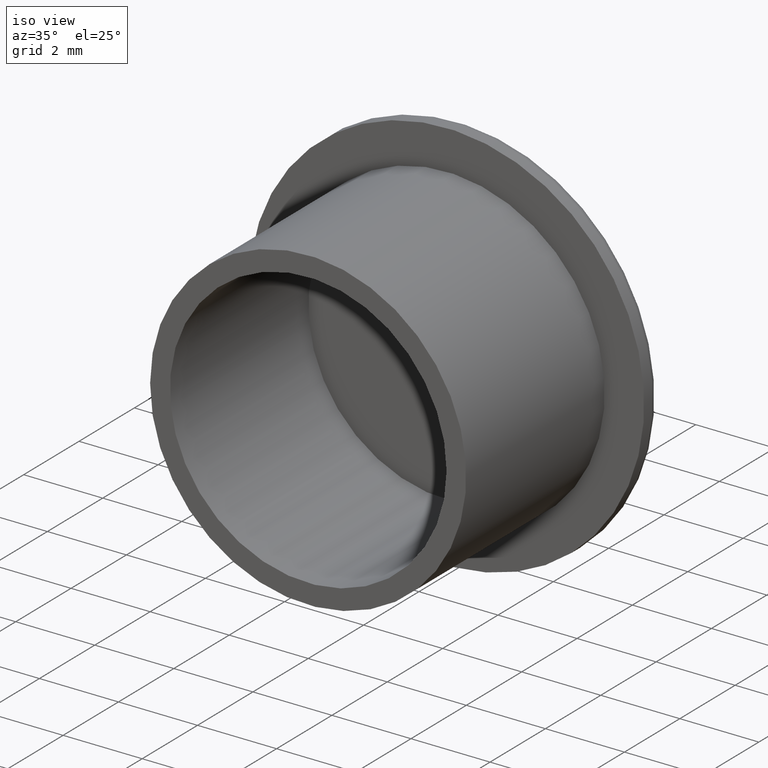
[diagram: clean part render]
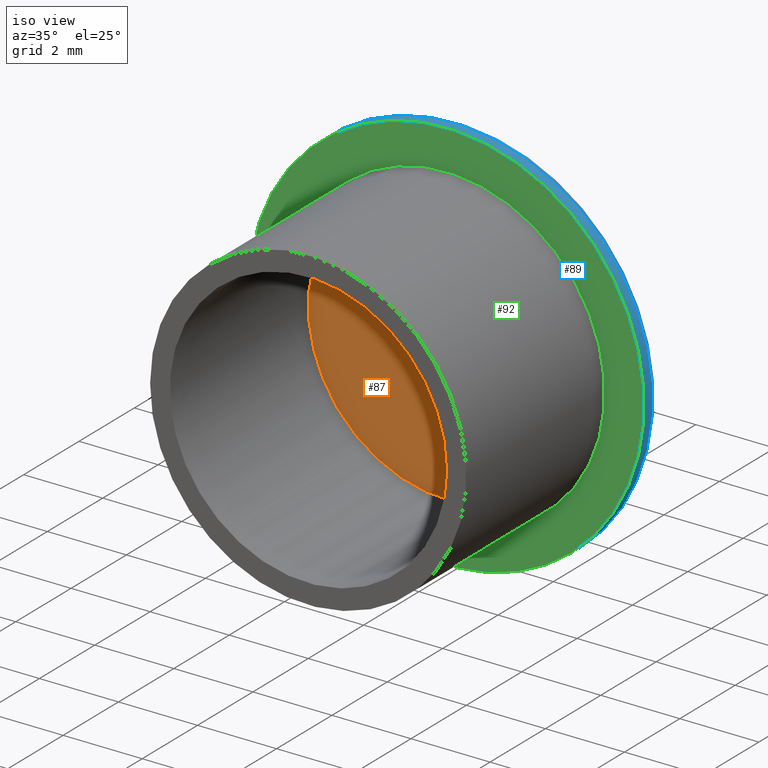
[diagram: same view with three faces highlighted in distinct colors, each labeled with its STEP entity id]
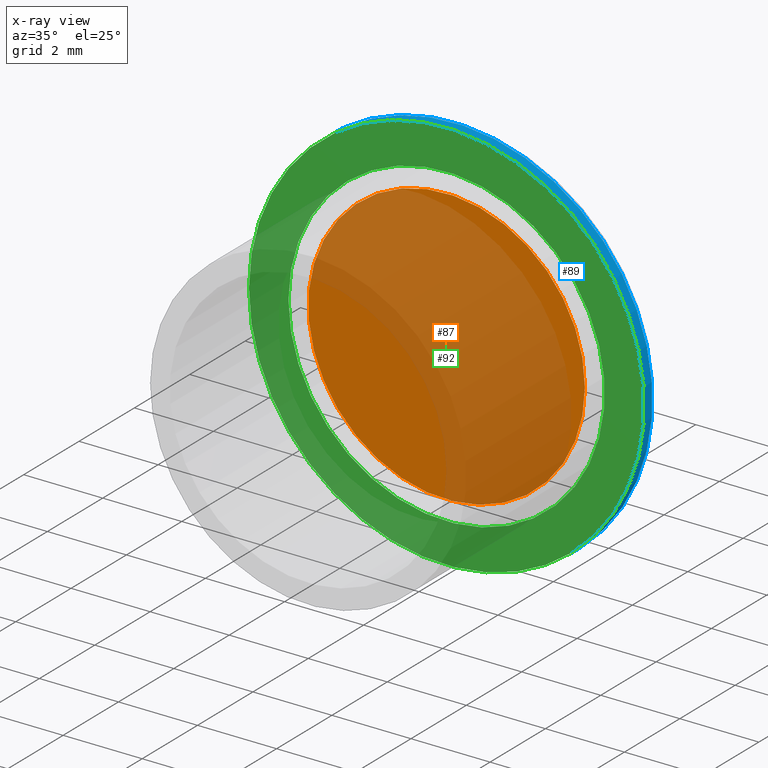
[diagram: x-ray of the same camera — body ghosted, the three highlighted faces saturated]
A machine part, iso view with three faces highlighted in distinct colors.
The next image is the same camera in x-ray (body ghosted, the three faces saturated) — at least one of them is partly hidden behind the body in this view.
Their STEP definitions:

[orange] entity #87 — the highlighted planar face has unit normal (0, 1, 0).
#16=PLANE('',#99);
#27=FACE_OUTER_BOUND('',#36,.T.);
#36=EDGE_LOOP('',(#71));
#48=CIRCLE('',#97,3.5);
#55=VERTEX_POINT('',#145);
#62=EDGE_CURVE('',#55,#55,#48,.T.);
#71=ORIENTED_EDGE('',*,*,#62,.F.);
#87=ADVANCED_FACE('',(#27),#16,.F.);
#97=AXIS2_PLACEMENT_3D('',#146,#115,#116);
#99=AXIS2_PLACEMENT_3D('',#149,#119,#120);
#115=DIRECTION('center_axis',(0.,1.,0.));
#116=DIRECTION('ref_axis',(-1.,0.,0.));
#119=DIRECTION('center_axis',(0.,1.,0.));
#120=DIRECTION('ref_axis',(0.,0.,1.));
#145=CARTESIAN_POINT('',(3.5,5.,4.28626379701574E-16));
#146=CARTESIAN_POINT('Origin',(0.,5.,0.));
#149=CARTESIAN_POINT('Origin',(-1.67888272668602E-16,5.,6.60847038467355E-17));

[blue] entity #89 — the highlighted cylindrical surface (bore or boss wall) has radius 5 mm, axis along (0, 1, 0).
#22=FACE_BOUND('',#40,.T.);
#29=FACE_OUTER_BOUND('',#39,.T.);
#39=EDGE_LOOP('',(#74));
#40=EDGE_LOOP('',(#75));
#50=CIRCLE('',#101,5.);
#52=CIRCLE('',#104,5.);
#57=VERTEX_POINT('',#151);
#59=VERTEX_POINT('',#156);
#64=EDGE_CURVE('',#57,#57,#50,.T.);
#66=EDGE_CURVE('',#59,#59,#52,.T.);
#74=ORIENTED_EDGE('',*,*,#66,.T.);
#75=ORIENTED_EDGE('',*,*,#64,.F.);
#84=CYLINDRICAL_SURFACE('',#103,5.);
#89=ADVANCED_FACE('',(#29,#22),#84,.T.);
#101=AXIS2_PLACEMENT_3D('',#152,#123,#124);
#103=AXIS2_PLACEMENT_3D('',#155,#127,#128);
#104=AXIS2_PLACEMENT_3D('',#157,#129,#130);
#123=DIRECTION('center_axis',(0.,1.,0.));
#124=DIRECTION('ref_axis',(1.,0.,0.));
#127=DIRECTION('center_axis',(0.,1.,0.));
#128=DIRECTION('ref_axis',(-1.,0.,0.));
#129=DIRECTION('center_axis',(0.,1.,0.));
#130=DIRECTION('ref_axis',(1.,0.,0.));
#151=CARTESIAN_POINT('',(-5.,5.3,6.12323399573677E-16));
#152=CARTESIAN_POINT('Origin',(0.,5.3,0.));
#155=CARTESIAN_POINT('Origin',(0.,5.25,0.));
#156=CARTESIAN_POINT('',(-5.,5.,0.));
#157=CARTESIAN_POINT('Origin',(0.,5.,0.));

[green] entity #92 — the highlighted planar face has unit normal (0, -1, 0).
#18=PLANE('',#109);
#24=FACE_BOUND('',#45,.T.);
#32=FACE_OUTER_BOUND('',#44,.T.);
#44=EDGE_LOOP('',(#79));
#45=EDGE_LOOP('',(#80));
#52=CIRCLE('',#104,5.);
#53=CIRCLE('',#107,4.);
#59=VERTEX_POINT('',#156);
#60=VERTEX_POINT('',#160);
#66=EDGE_CURVE('',#59,#59,#52,.T.);
#67=EDGE_CURVE('',#60,#60,#53,.T.);
#79=ORIENTED_EDGE('',*,*,#66,.F.);
#80=ORIENTED_EDGE('',*,*,#67,.T.);
#92=ADVANCED_FACE('',(#32,#24),#18,.T.);
#104=AXIS2_PLACEMENT_3D('',#157,#129,#130);
#107=AXIS2_PLACEMENT_3D('',#161,#135,#136);
#109=AXIS2_PLACEMENT_3D('',#164,#139,#140);
#129=DIRECTION('center_axis',(0.,1.,0.));
#130=DIRECTION('ref_axis',(1.,0.,0.));
#135=DIRECTION('center_axis',(0.,1.,0.));
#136=DIRECTION('ref_axis',(1.,0.,0.));
#139=DIRECTION('center_axis',(0.,-1.,0.));
#140=DIRECTION('ref_axis',(0.,0.,-1.));
#156=CARTESIAN_POINT('',(-5.,5.,0.));
#157=CARTESIAN_POINT('Origin',(0.,5.,0.));
#160=CARTESIAN_POINT('',(-4.,5.,0.));
#161=CARTESIAN_POINT('Origin',(0.,5.,0.));
#164=CARTESIAN_POINT('Origin',(-5.,5.,0.));